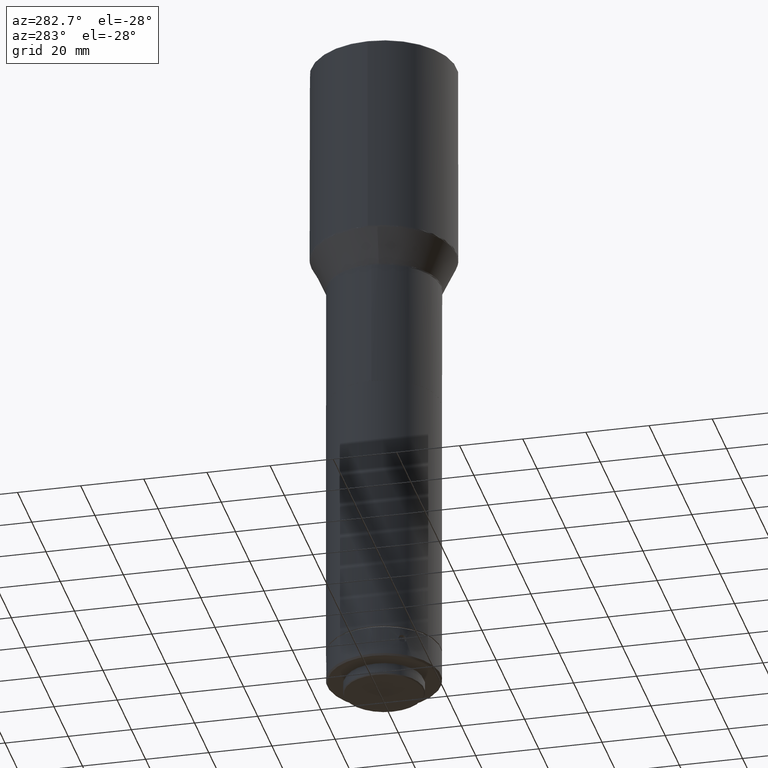
[diagram: clean part render]
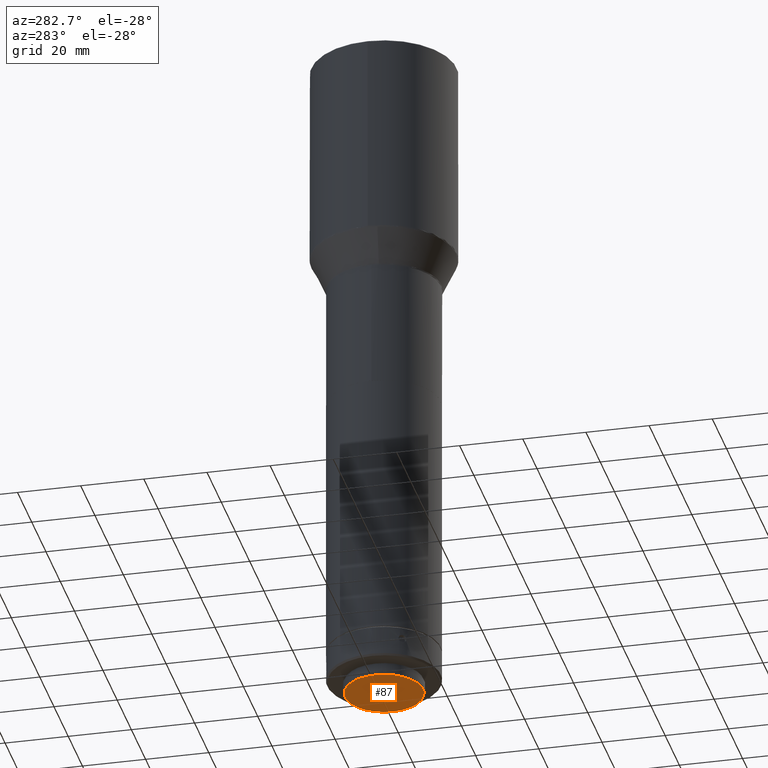
[diagram: same view with one face highlighted and labeled with its STEP entity id]
A machine part, auxiliary view. The second image highlights one B-rep face of the part: STEP entity #87.
In plain terms, the highlighted planar face has unit normal (-0, 0, 1).
Its self-contained STEP definition (entity closure, byte-faithful):
#64 = FACE_OUTER_BOUND ( 'NONE', #841, .T. ) ;
#69 = DIRECTION ( 'NONE',  ( -1.110223024625158266E-16, 1.040834085586082254E-17, 1.000000000000000000 ) ) ;
#70 = CARTESIAN_POINT ( 'NONE',  ( 12.40000000000005720, -5.421010862427522170E-17, -719.3859819999998990 ) ) ;
#87 = ADVANCED_FACE ( 'NONE', ( #64 ), #847, .F. ) ;
#344 = CARTESIAN_POINT ( 'NONE',  ( -0.1932527796232136330, 10.74826280675944901, -719.3859819999998990 ) ) ;
#424 = DIRECTION ( 'NONE',  ( 1.000000000000000000, 0.000000000000000000, 0.000000000000000000 ) ) ;
#428 = AXIS2_PLACEMENT_3D ( 'NONE', #792, #724, #424 ) ;
#562 = AXIS2_PLACEMENT_3D ( 'NONE', #344, #69, #788 ) ;
#671 = ORIENTED_EDGE ( 'NONE', *, *, #690, .F. ) ;
#690 = EDGE_CURVE ( 'NONE', #715, #715, #766, .T. ) ;
#715 = VERTEX_POINT ( 'NONE', #70 ) ;
#724 = DIRECTION ( 'NONE',  ( 0.000000000000000000, 0.000000000000000000, 1.000000000000000000 ) ) ;
#766 = CIRCLE ( 'NONE', #428, 12.40000000000005720 ) ;
#788 = DIRECTION ( 'NONE',  ( 1.000000000000000000, 0.000000000000000000, 1.110223024625158266E-16 ) ) ;
#792 = CARTESIAN_POINT ( 'NONE',  ( 8.673617379884035472E-16, -5.421010862427522170E-17, -719.3859819999998990 ) ) ;
#841 = EDGE_LOOP ( 'NONE', ( #671 ) ) ;
#847 = PLANE ( 'NONE',  #562 ) ;